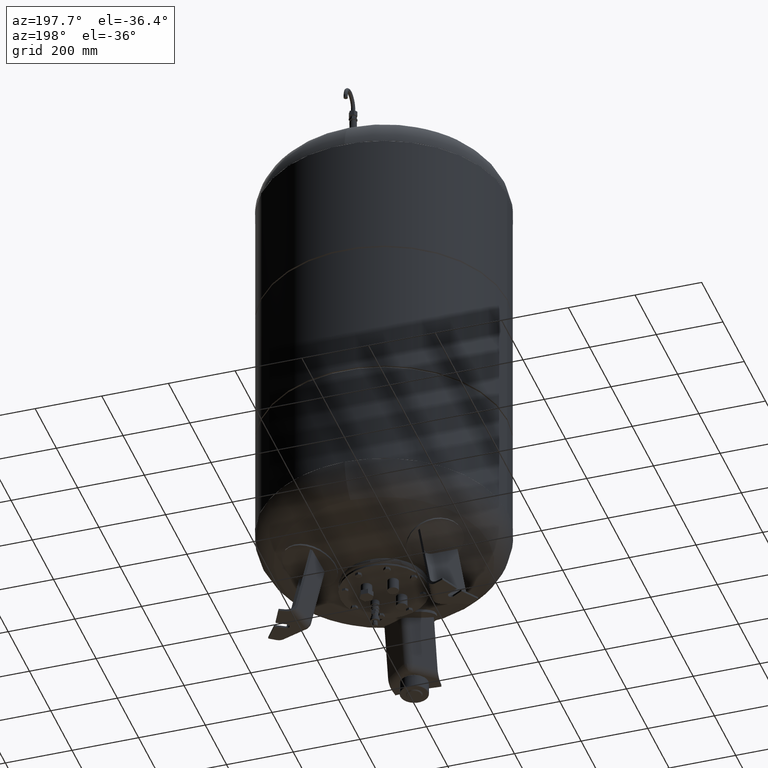
[diagram: clean part render]
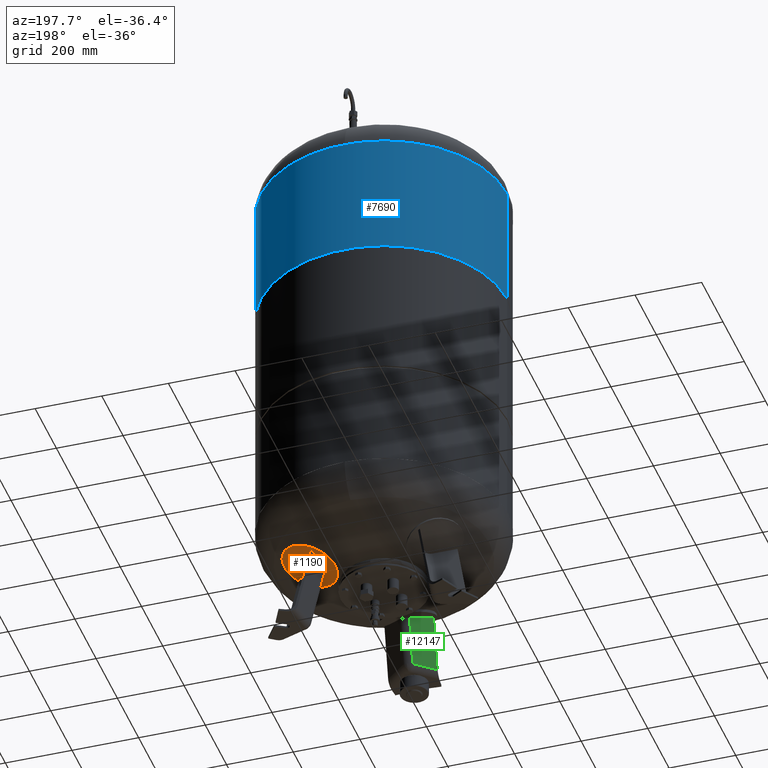
[diagram: same view with three faces highlighted in distinct colors, each labeled with its STEP entity id]
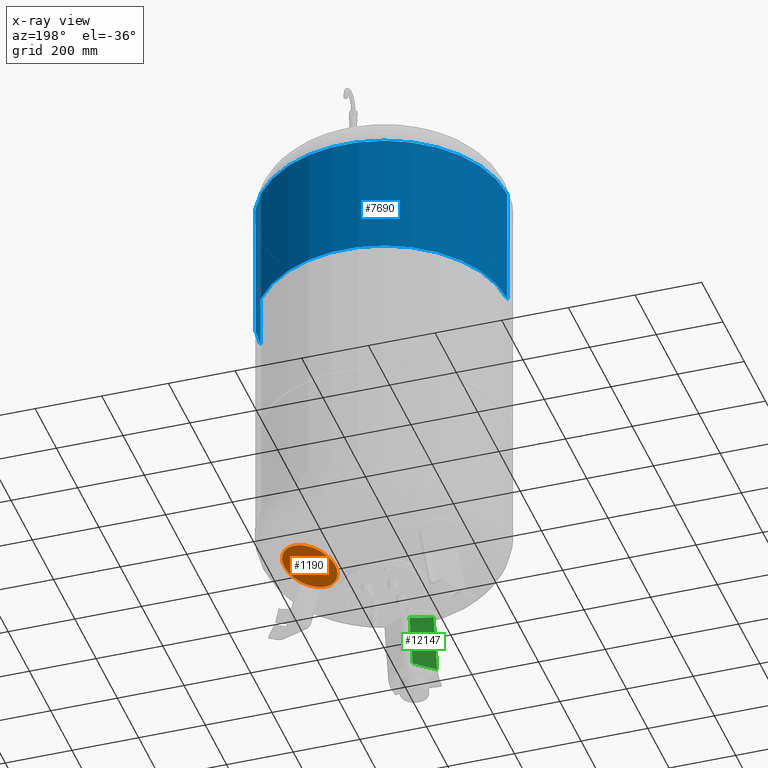
[diagram: x-ray of the same camera — body ghosted, the three highlighted faces saturated]
A machine part, auxiliary view with three faces highlighted in distinct colors.
The next image is the same camera in x-ray (body ghosted, the three faces saturated) — at least one of them is partly hidden behind the body in this view.
Their STEP definitions:

[orange] entity #1190 — the highlighted spherical surface has radius 594 mm.
#1098=CARTESIAN_POINT('',(256.769650287754130,148.246026532526680,254.194420566592950));
#1099=VERTEX_POINT('',#1098);
#1108=CARTESIAN_POINT('',(119.323908097931210,68.891690280264527,193.271869143891820));
#1109=VERTEX_POINT('',#1108);
#1110=CARTESIAN_POINT('',(188.046779192842680,108.568858406395590,223.733144855242360));
#1111=DIRECTION('',(0.310355748208370,0.179183974772650,-0.933580426497202));
#1112=DIRECTION('',(0.808504365822488,0.466790213248601,0.358367949545300));
#1113=AXIS2_PLACEMENT_3D('',#1110,#1111,#1112);
#1114=CIRCLE('',#1113,85.0);
#1115=EDGE_CURVE('',#1109,#1099,#1114,.T.);
#1171=CARTESIAN_POINT('',(188.046779192842680,108.568858406395590,223.733144855242360));
#1172=DIRECTION('',(0.310355748208370,0.179183974772650,-0.933580426497202));
#1173=DIRECTION('',(0.808504365822488,0.466790213248601,0.358367949545300));
#1174=AXIS2_PLACEMENT_3D('',#1171,#1172,#1173);
#1175=CIRCLE('',#1174,85.0);
#1176=EDGE_CURVE('',#1099,#1109,#1175,.T.);
#1181=CARTESIAN_POINT('',(5.592702379731719,3.228948043601235,772.572841979124180));
#1182=DIRECTION('',(0.500000000000000,-0.866025403784439,-1.554724E-016));
#1183=DIRECTION('',(0.808504365822488,0.466790213248601,0.358367949545300));
#1184=AXIS2_PLACEMENT_3D('',#1181,#1182,#1183);
#1185=SPHERICAL_SURFACE('',#1184,594.0);
#1186=ORIENTED_EDGE('',*,*,#1176,.T.);
#1187=ORIENTED_EDGE('',*,*,#1115,.T.);
#1188=EDGE_LOOP('',(#1186,#1187));
#1189=FACE_OUTER_BOUND('',#1188,.T.);
#1190=ADVANCED_FACE('',(#1189),#1185,.T.);

[blue] entity #7690 — the highlighted cylindrical surface (partial cylindrical patch) has radius 370 mm, axis along (0, 0, 1).
#7360=CARTESIAN_POINT('',(370.0,0.0,1496.0));
#7361=VERTEX_POINT('',#7360);
#7362=CARTESIAN_POINT('',(369.999999999999720,0.0,1123.666666666666500));
#7363=VERTEX_POINT('',#7362);
#7364=CARTESIAN_POINT('',(370.0,0.0,1496.0));
#7365=DIRECTION('',(0.0,0.0,-1.0));
#7366=VECTOR('',#7365,372.333333333333480);
#7367=LINE('',#7364,#7366);
#7368=EDGE_CURVE('',#7361,#7363,#7367,.T.);
#7370=CARTESIAN_POINT('',(-369.999999999999890,-4.531044E-014,1496.0));
#7371=VERTEX_POINT('',#7370);
#7379=CARTESIAN_POINT('',(-369.999999999999720,-4.531044E-014,1123.666666666666500));
#7380=VERTEX_POINT('',#7379);
#7381=CARTESIAN_POINT('',(-369.999999999999890,-4.531044E-014,1496.0));
#7382=DIRECTION('',(0.0,0.0,-1.0));
#7383=VECTOR('',#7382,372.333333333333480);
#7384=LINE('',#7381,#7383);
#7385=EDGE_CURVE('',#7371,#7380,#7384,.T.);
#7663=CARTESIAN_POINT('',(5.661371E-015,0.0,1123.666666666666500));
#7664=DIRECTION('',(0.0,0.0,1.0));
#7665=DIRECTION('',(1.0,0.0,0.0));
#7666=AXIS2_PLACEMENT_3D('',#7663,#7664,#7665);
#7667=CIRCLE('',#7666,369.999999999999720);
#7668=EDGE_CURVE('',#7363,#7380,#7667,.T.);
#7673=CARTESIAN_POINT('',(1.117467E-014,0.0,1309.833333333333500));
#7674=DIRECTION('',(2.961484E-017,0.0,1.0));
#7675=DIRECTION('',(1.0,0.0,0.0));
#7676=AXIS2_PLACEMENT_3D('',#7673,#7674,#7675);
#7677=CYLINDRICAL_SURFACE('',#7676,369.999999999999890);
#7678=ORIENTED_EDGE('',*,*,#7368,.T.);
#7679=ORIENTED_EDGE('',*,*,#7668,.T.);
#7680=ORIENTED_EDGE('',*,*,#7385,.F.);
#7681=CARTESIAN_POINT('',(1.668796E-014,0.0,1496.0));
#7682=DIRECTION('',(0.0,0.0,1.0));
#7683=DIRECTION('',(1.0,0.0,0.0));
#7684=AXIS2_PLACEMENT_3D('',#7681,#7682,#7683);
#7685=CIRCLE('',#7684,370.0);
#7686=EDGE_CURVE('',#7361,#7371,#7685,.T.);
#7687=ORIENTED_EDGE('',*,*,#7686,.F.);
#7688=EDGE_LOOP('',(#7678,#7679,#7680,#7687));
#7689=FACE_OUTER_BOUND('',#7688,.T.);
#7690=ADVANCED_FACE('',(#7689),#7677,.T.);

[green] entity #12147 — the highlighted planar face has unit normal (-0.6455, 0.7471, -0.1588).
#11613=CARTESIAN_POINT('',(-73.500000000000000,-269.029946471096990,63.029948423057299));
#11614=VERTEX_POINT('',#11613);
#11622=CARTESIAN_POINT('',(-16.136450826554540,-219.470961811045560,63.029948423057299));
#11623=VERTEX_POINT('',#11622);
#11624=CARTESIAN_POINT('',(-73.500000000000000,-269.029946471096990,63.029948423057299));
#11625=DIRECTION('',(0.756707249513243,0.653753882232528,0.0));
#11626=VECTOR('',#11625,75.806792138366532);
#11627=LINE('',#11624,#11626);
#11628=EDGE_CURVE('',#11614,#11623,#11627,.T.);
#11894=CARTESIAN_POINT('',(-73.499999999999986,-234.520144637446320,225.385801201784090));
#11895=VERTEX_POINT('',#11894);
#11903=CARTESIAN_POINT('',(-73.500000000000000,-269.029946471096990,63.029948423057299));
#11904=DIRECTION('',(8.561634E-017,0.207911690817760,0.978147600733805));
#11905=VECTOR('',#11904,165.982979109622700);
#11906=LINE('',#11903,#11905);
#11907=EDGE_CURVE('',#11614,#11895,#11906,.T.);
#12028=CARTESIAN_POINT('',(-16.136450826554519,-189.328103848635100,204.840945578744990));
#12029=VERTEX_POINT('',#12028);
#12030=CARTESIAN_POINT('',(18.964302761024953,-37.336079262704459,777.238630107692420));
#12031=DIRECTION('',(0.645458033062181,-0.747104967402683,0.158802063077709));
#12032=DIRECTION('',(0.0,-0.207911690817760,-0.978147600733806));
#12033=AXIS2_PLACEMENT_3D('',#12030,#12031,#12032);
#12034=CIRCLE('',#12033,593.272911647115730);
#12035=EDGE_CURVE('',#11895,#12029,#12034,.T.);
#12131=CARTESIAN_POINT('',(-73.500000000000000,-296.824956747733550,-67.735293817669515));
#12132=DIRECTION('',(-0.645458033062181,0.747104967402683,-0.158802063077709));
#12133=DIRECTION('',(-1.324933E-016,-0.207911690817760,-0.978147600733806));
#12134=AXIS2_PLACEMENT_3D('',#12131,#12132,#12133);
#12135=PLANE('',#12134);
#12136=ORIENTED_EDGE('',*,*,#11907,.T.);
#12137=ORIENTED_EDGE('',*,*,#12035,.T.);
#12138=CARTESIAN_POINT('',(-16.136450826554540,-219.470961811045560,63.029948423057299));
#12139=DIRECTION('',(1.470300E-016,0.207911690817761,0.978147600733805));
#12140=VECTOR('',#12139,144.979139190548750);
#12141=LINE('',#12138,#12140);
#12142=EDGE_CURVE('',#11623,#12029,#12141,.T.);
#12143=ORIENTED_EDGE('',*,*,#12142,.F.);
#12144=ORIENTED_EDGE('',*,*,#11628,.F.);
#12145=EDGE_LOOP('',(#12136,#12137,#12143,#12144));
#12146=FACE_OUTER_BOUND('',#12145,.T.);
#12147=ADVANCED_FACE('',(#12146),#12135,.T.);